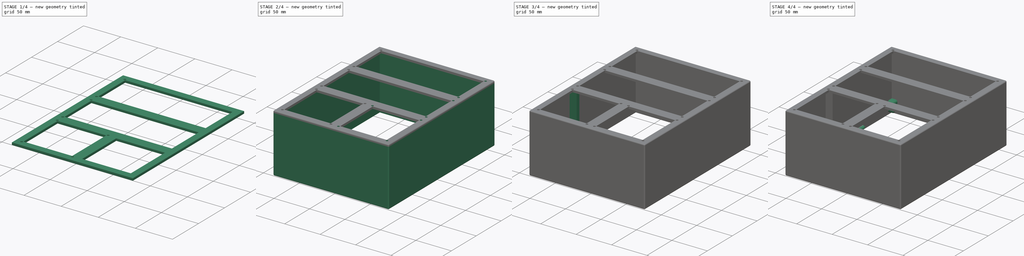
[diagram: build sequence overview — one tinted view per stage of 4, left to right]
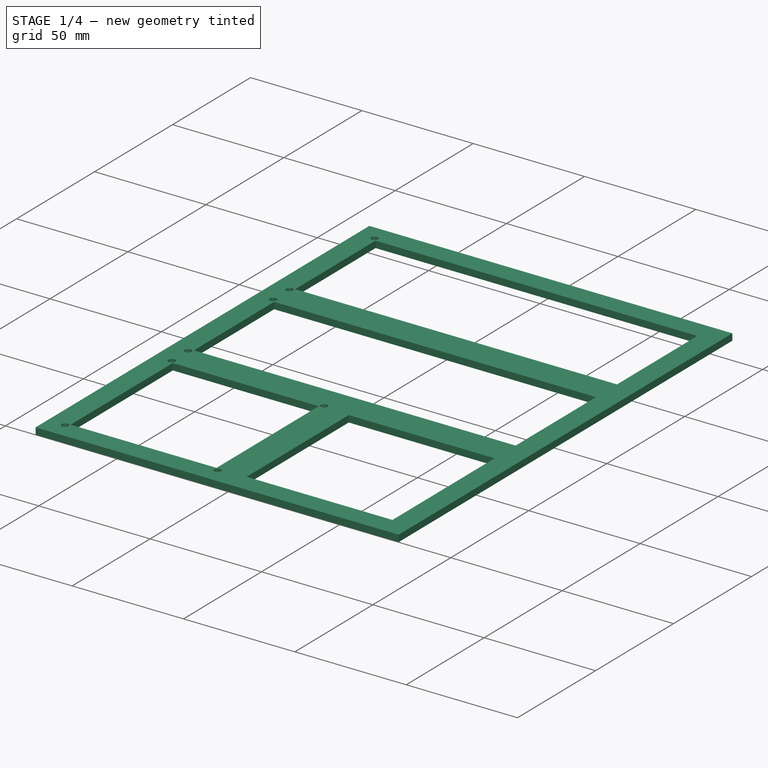
[diagram: stage 1 of 4 — iso view after this stage's code; geometry added in this stage tinted green]
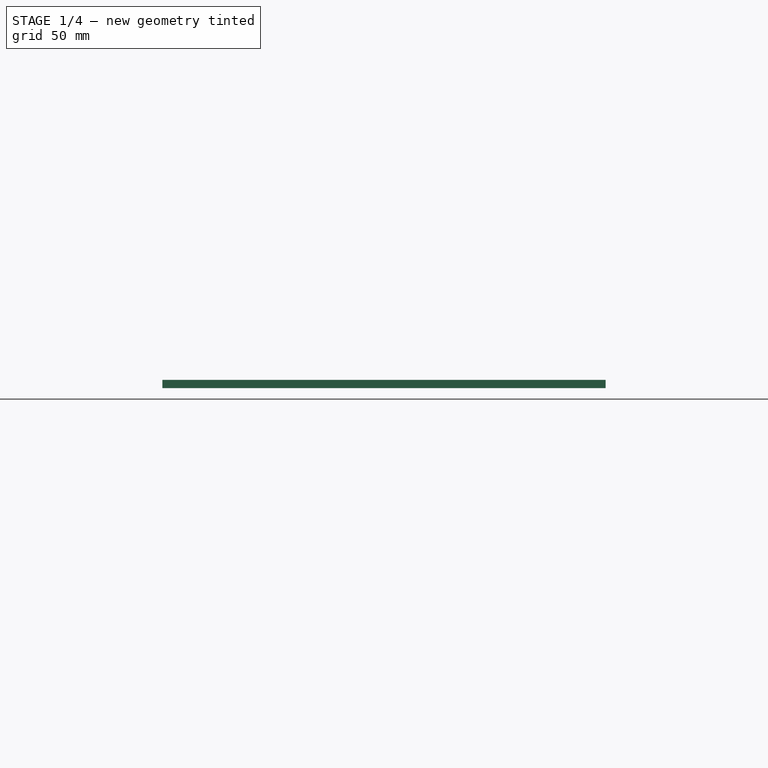
[diagram: stage 1 of 4 — front view after this stage's code; geometry added in this stage tinted green]
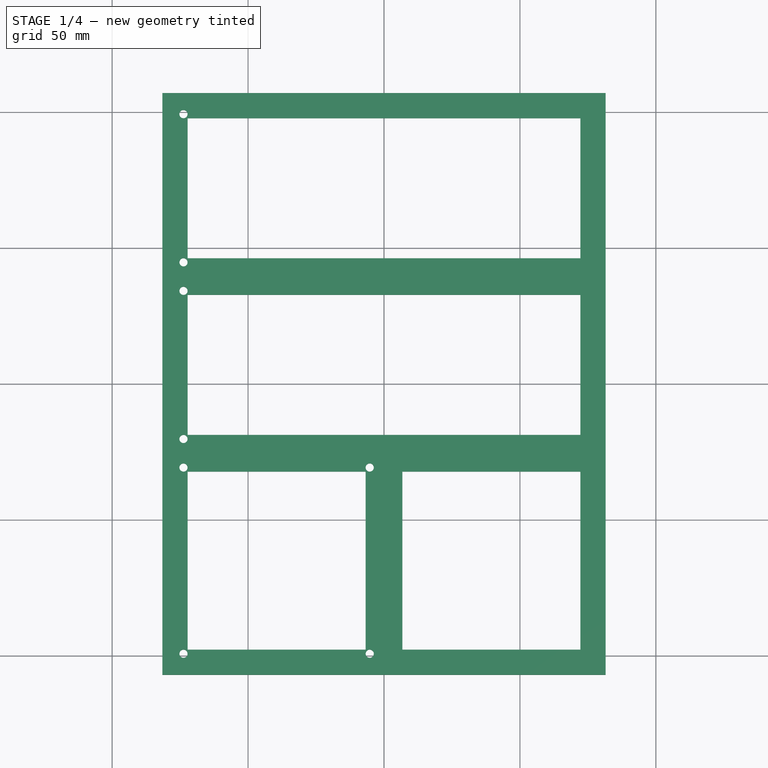
[diagram: stage 1 of 4 — top view after this stage's code; geometry added in this stage tinted green]
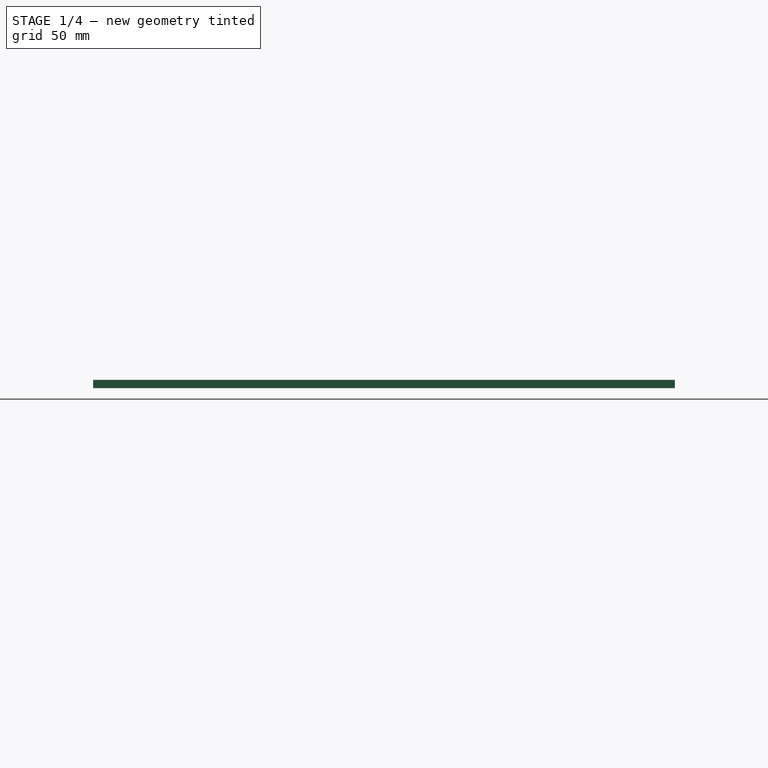
[diagram: stage 1 of 4 — right view after this stage's code; geometry added in this stage tinted green]
FCSTD DOCUMENT  (FreeCAD 0.20R29603 (Git))
Label: frame-2x2-v2
License: All rights reserved
LicenseURL: http://en.wikipedia.org/wiki/All_rights_reserved
objects: Sketcher::SketchObject×8, PartDesign::Pad×5, PartDesign::Pocket×3, PartDesign::Mirrored×3, PartDesign::MultiTransform×2, PartDesign::Fillet×2, PartDesign::Body×1
note: 34 computed .brp shape members not serialized (recipe doc carries the construction recipe); baked Part::Feature solids carry a one-line shape summary decoded from their .brp

FEATURE [Sketcher::SketchObject] Sketch
  FullyConstrained = true
  MapMode = 5
  Support = -> [XY_Plane]
  sketch-geometry (4):
    g0: LineSegment StartX=-81.5 StartY=107 StartZ=0 EndX=81.5 EndY=107 EndZ=0
    g1: LineSegment StartX=81.5 StartY=107 StartZ=0 EndX=81.5 EndY=-107 EndZ=0
    g2: LineSegment StartX=81.5 StartY=-107 StartZ=0 EndX=-81.5 EndY=-107 EndZ=0
    g3: LineSegment StartX=-81.5 StartY=-107 StartZ=0 EndX=-81.5 EndY=107 EndZ=0
  constraints (11):
    c: Coincident(g0,g1)
    c: Coincident(g1,g2)
    c: Coincident(g2,g3)
    c: Coincident(g3,g0)
    c: Horizontal(g0)
    c: Horizontal(g2)
    c: Vertical(g1)
    c: Vertical(g3)
    c: DistanceX(g0,g0) = 163
    c: DistanceY(g2,g0) = 214
    c: Symmetric(g0,g1,g-1)
FEATURE [PartDesign::Pad] Pad
  Direction = (0,0,1)
  Length = 3
  Length2 = 10
  Profile = -> Sketch
  ReferenceAxis = -> Sketch [N_Axis]
  Type = 0
FEATURE [Sketcher::SketchObject] Sketch001
  ExternalGeometry = -> [Pad]
  FullyConstrained = true
  MapMode = 5
  Placement = pos=(0,0,3) rot=(0,0,1;0rad)
  Support = -> [Pad]
  sketch-geometry (18):
    g0: LineSegment StartX=-72.25 StartY=97.75 StartZ=0 EndX=72.25 EndY=97.75 EndZ=0
    g1: LineSegment StartX=72.25 StartY=97.75 StartZ=0 EndX=72.25 EndY=46.25 EndZ=0
    g2: LineSegment StartX=72.25 StartY=46.25 StartZ=0 EndX=-72.25 EndY=46.25 EndZ=0
    g3: LineSegment StartX=-72.25 StartY=46.25 StartZ=0 EndX=-72.25 EndY=97.75 EndZ=0
    g4: GeomPoint X=-72.25 Y=107 Z=0
    g5: GeomPoint X=-81.5 Y=97.75 Z=0
    g6: LineSegment StartX=72.25 StartY=-18.75 StartZ=0 EndX=-72.25 EndY=-18.75 EndZ=0
    g7: LineSegment StartX=-72.25 StartY=-18.75 StartZ=0 EndX=-72.25 EndY=32.75 EndZ=0
    g8: LineSegment StartX=-72.25 StartY=32.75 StartZ=0 EndX=72.25 EndY=32.75 EndZ=0
    g9: LineSegment StartX=72.25 StartY=32.75 StartZ=0 EndX=72.25 EndY=-18.75 EndZ=0
    g10: LineSegment StartX=-72.25 StartY=-32.25 StartZ=0 EndX=-6.75 EndY=-32.25 EndZ=0
    g11: LineSegment StartX=-6.75 StartY=-32.25 StartZ=0 EndX=-6.75 EndY=-97.75 EndZ=0
    g12: LineSegment StartX=-6.75 StartY=-97.75 StartZ=0 EndX=-72.25 EndY=-97.75 EndZ=0
    g13: LineSegment StartX=-72.25 StartY=-97.75 StartZ=0 EndX=-72.25 EndY=-32.25 EndZ=0
    g14: LineSegment StartX=6.75 StartY=-32.25 StartZ=0 EndX=72.25 EndY=-32.25 EndZ=0
    g15: LineSegment StartX=72.25 StartY=-32.25 StartZ=0 EndX=72.25 EndY=-97.75 EndZ=0
    g16: LineSegment StartX=72.25 StartY=-97.75 StartZ=0 EndX=6.75 EndY=-97.75 EndZ=0
    g17: LineSegment StartX=6.75 StartY=-97.75 StartZ=0 EndX=6.75 EndY=-32.25 EndZ=0
  constraints (52):
    c: Coincident(g0,g1)
    c: Coincident(g1,g2)
    c: Coincident(g2,g3)
    c: Coincident(g3,g0)
    c: Horizontal(g0)
    c: Horizontal(g2)
    c: Vertical(g1)
    c: Vertical(g3)
    c: DistanceY(g2,g0) = 51.5
    c: DistanceX(g0,g0) = 144.5
    c: PointOnObject(g4,g-4)
    c: PointOnObject(g5,g-3)
    c: DistanceX(g-4,g4) = 9.25
    c: DistanceY(g5,g-4) = 9.25
    c: DistanceX(g0,g4) = 0
    c: DistanceY(g0,g5) = 0
    c: Coincident(g6,g7)
    c: Coincident(g7,g8)
    c: Coincident(g8,g9)
    c: Coincident(g9,g6)
    c: Horizontal(g6)
    c: Horizontal(g8)
    c: Vertical(g7)
    c: Vertical(g9)
    c: DistanceX(g7,g8) = 144.5
    c: DistanceY(g6,g7) = 51.5
    c: DistanceX(g4,g7) = 0
    c: DistanceY(g7,g2) = 13.5
    c: Coincident(g10,g11)
    c: Coincident(g11,g12)
    c: Coincident(g12,g13)
    c: Coincident(g13,g10)
    c: Horizontal(g10)
    c: Horizontal(g12)
    c: Vertical(g11)
    c: Vertical(g13)
    c: DistanceY(g12,g10) = 65.5
    c: DistanceX(g10,g10) = 65.5
    c: DistanceX(g4,g10) = 0
    c: DistanceY(g10,g6) = 13.5
    c: Coincident(g14,g15)
    c: Coincident(g15,g16)
    c: Coincident(g16,g17)
    c: Coincident(g17,g14)
    c: Horizontal(g14)
    c: Horizontal(g16)
    c: Vertical(g15)
    c: Vertical(g17)
    c: DistanceY(g16,g14) = 65.5
    c: DistanceX(g14,g14) = 65.5
    c: DistanceX(g14,g6) = 0
    c: DistanceY(g10,g14) = 0
FEATURE [PartDesign::Pocket] Pocket
  BaseFeature = -> Pad
  Direction = (0,0,-1)
  Length = 5
  Length2 = 5
  Profile = -> Sketch001
  ReferenceAxis = -> Sketch001 [N_Axis]
  Type = 1
FEATURE [Sketcher::SketchObject] Sketch002
  ExternalGeometry = -> [Pocket]
  FullyConstrained = true
  MapMode = 5
  Placement = pos=(0,0,3) rot=(0,0,1;0rad)
  Support = -> [Pocket]
  expr: Constraints[10] = .Constraints.HorizontalDistance
  expr: Constraints[11] = .Constraints.VerticalDistance
  expr: Constraints[12] = .Constraints.HorizontalDistance
  expr: Constraints[13] = .Constraints.VerticalDistance
  expr: Constraints[14] = .Constraints.HorizontalDistance
  expr: Constraints[15] = .Constraints.VerticalDistance
  expr: Constraints[16] = .Constraints.HorizontalDistance
  expr: Constraints[17] = .Constraints.VerticalDistance
  expr: Constraints[18] = .Constraints.HorizontalDistance
  expr: Constraints[19] = .Constraints.VerticalDistance
  expr: Constraints[20] = .Constraints.HorizontalDistance
  expr: Constraints[21] = .Constraints.VerticalDistance
  expr: Constraints[22] = .Constraints.HorizontalDistance
  expr: Constraints[23] = .Constraints.VerticalDistance
  sketch-geometry (8):
    g0: Circle CenterX=-73.75 CenterY=99.25 CenterZ=0 NormalX=0 NormalY=0 NormalZ=1 AngleXU=0 Radius=1.5
    g1: Circle CenterX=-73.75 CenterY=44.75 CenterZ=0 NormalX=0 NormalY=0 NormalZ=1 AngleXU=0 Radius=1.5
    g2: Circle CenterX=-73.75 CenterY=34.25 CenterZ=0 NormalX=0 NormalY=0 NormalZ=1 AngleXU=0 Radius=1.5
    g3: Circle CenterX=-73.75 CenterY=-20.25 CenterZ=0 NormalX=0 NormalY=0 NormalZ=1 AngleXU=0 Radius=1.5
    g4: Circle CenterX=-73.75 CenterY=-30.75 CenterZ=0 NormalX=0 NormalY=0 NormalZ=1 AngleXU=0 Radius=1.5
    g5: Circle CenterX=-73.75 CenterY=-99.25 CenterZ=0 NormalX=0 NormalY=0 NormalZ=1 AngleXU=0 Radius=1.5
    g6: Circle CenterX=-5.25 CenterY=-30.75 CenterZ=0 NormalX=0 NormalY=0 NormalZ=1 AngleXU=0 Radius=1.5
    g7: Circle CenterX=-5.25 CenterY=-99.25 CenterZ=0 NormalX=0 NormalY=0 NormalZ=1 AngleXU=0 Radius=1.5
  constraints (24):
    c: Diameter(g0) = 3
    c: Equal(g0,g1)
    c: Equal(g1,g2)
    c: Equal(g2,g3)
    c: Equal(g3,g4)
    c: Equal(g4,g5)
    c: Equal(g5,g7)
    c: Equal(g7,g6)
    c: DistanceX(g0,g-4) = 1.5  'HorizontalDistance'
    c: DistanceY(g-4,g0) = 1.5  'VerticalDistance'
    c: DistanceX(g1,g-3) = 1.5
    c: DistanceY(g1,g-3) = 1.5
    c: DistanceX(g2,g-6) = 1.5
    c: DistanceY(g-6,g2) = 1.5
    c: DistanceX(g3,g-6) = 1.5
    c: DistanceY(g3,g-6) = 1.5
    c: DistanceX(g4,g-8) = 1.5
    c: DistanceY(g-8,g4) = 1.5
    c: DistanceX(g5,g-9) = 1.5
    c: DistanceY(g5,g-9) = 1.5
    c: DistanceX(g-9,g7) = 1.5
    c: DistanceY(g7,g-9) = 1.5
    c: DistanceX(g-7,g6) = 1.5
    c: DistanceY(g-7,g6) = 1.5
FEATURE [PartDesign::Pocket] Pocket001
  BaseFeature = -> Pocket
  Direction = (0,0,-1)
  Length = 5
  Length2 = 5
  Profile = -> Sketch002
  ReferenceAxis = -> Sketch002 [N_Axis]
  Type = 1
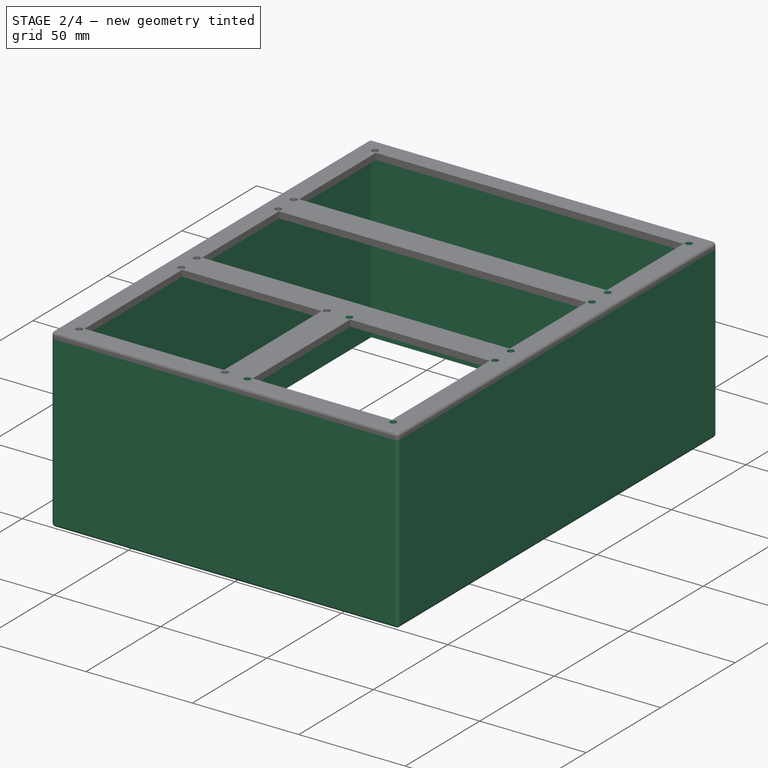
[diagram: stage 2 of 4 — iso view after this stage's code; geometry added in this stage tinted green]
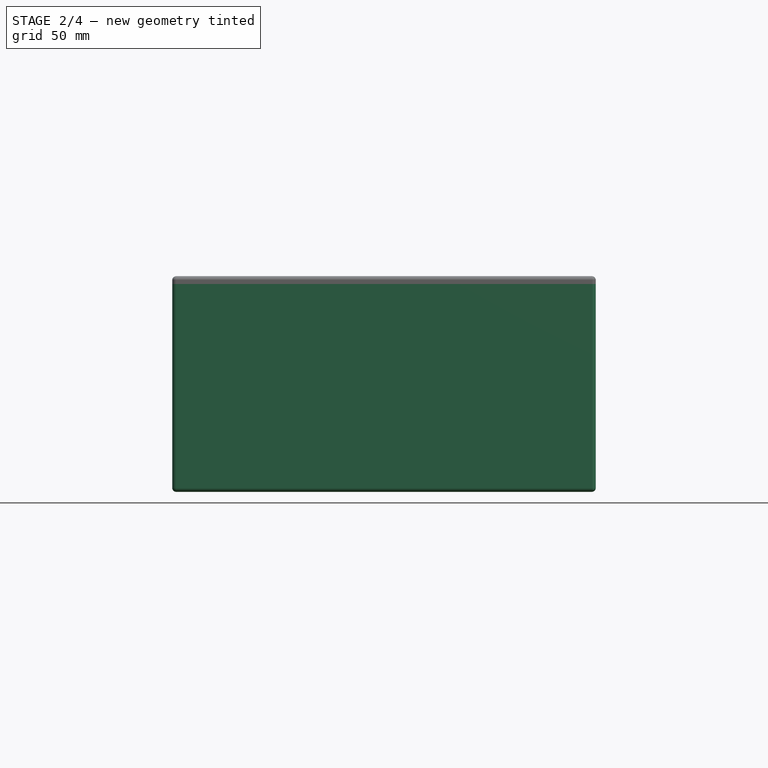
[diagram: stage 2 of 4 — front view after this stage's code; geometry added in this stage tinted green]
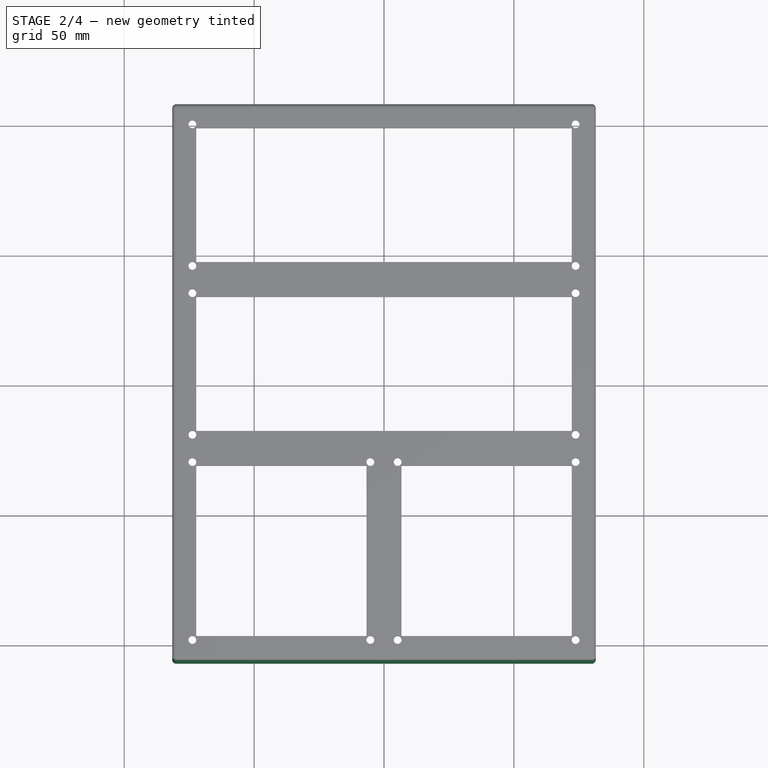
[diagram: stage 2 of 4 — top view after this stage's code; geometry added in this stage tinted green]
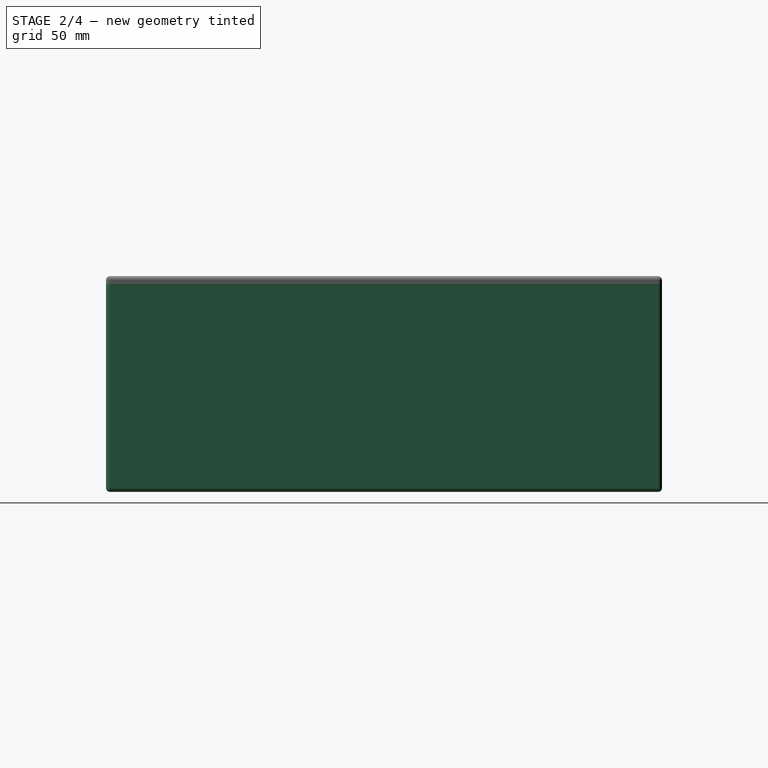
[diagram: stage 2 of 4 — right view after this stage's code; geometry added in this stage tinted green]
FEATURE [PartDesign::Mirrored] Mirrored
  MirrorPlane = -> Sketch002 [V_Axis]
FEATURE [PartDesign::MultiTransform] MultiTransform
  BaseFeature = -> Pocket001
  Originals = -> [Pocket001]
  Transformations = -> [Mirrored]
FEATURE [Sketcher::SketchObject] Sketch003  label="SketchInnerWall"
  ExternalGeometry = -> [MultiTransform]
  FullyConstrained = true
  MapMode = 5
  Placement = pos=(0,0,0) rot=(1,0,0;3.14159rad)
  Support = -> [MultiTransform]
  sketch-geometry (8):
    g0: LineSegment StartX=-81.5 StartY=107 StartZ=0 EndX=81.5 EndY=107 EndZ=0
    g1: LineSegment StartX=81.5 StartY=107 StartZ=0 EndX=81.5 EndY=-107 EndZ=0
    g2: LineSegment StartX=81.5 StartY=-107 StartZ=0 EndX=-81.5 EndY=-107 EndZ=0
    g3: LineSegment StartX=-81.5 StartY=-107 StartZ=0 EndX=-81.5 EndY=107 EndZ=0
    g4: LineSegment StartX=-79.5 StartY=105 StartZ=0 EndX=79.5 EndY=105 EndZ=0
    g5: LineSegment StartX=79.5 StartY=105 StartZ=0 EndX=79.5 EndY=-105 EndZ=0
    g6: LineSegment StartX=79.5 StartY=-105 StartZ=0 EndX=-79.5 EndY=-105 EndZ=0
    g7: LineSegment StartX=-79.5 StartY=-105 StartZ=0 EndX=-79.5 EndY=105 EndZ=0
  constraints (24):
    c: Coincident(g0,g1)
    c: Coincident(g1,g2)
    c: Coincident(g2,g3)
    c: Coincident(g3,g0)
    c: Horizontal(g0)
    c: Horizontal(g2)
    c: Vertical(g1)
    c: Vertical(g3)
    c: DistanceX(g0,g-5) = 0
    c: DistanceX(g-4,g0) = 0
    c: DistanceY(g0,g-4) = 0
    c: DistanceY(g-6,g2) = 0
    c: Coincident(g4,g5)
    c: Coincident(g5,g6)
    c: Coincident(g6,g7)
    c: Coincident(g7,g4)
    c: Horizontal(g4)
    c: Horizontal(g6)
    c: Vertical(g5)
    c: Vertical(g7)
    c: DistanceX(g0,g4) = 2
    c: DistanceY(g4,g0) = 2
    c: DistanceX(g4,g0) = 2
    c: DistanceY(g2,g6) = 2
FEATURE [PartDesign::Pad] Pad001  label="InnerWallPad"
  BaseFeature = -> MultiTransform
  Direction = (0,0,-1)
  Length = 80
  Length2 = 10
  Profile = -> Sketch003
  ReferenceAxis = -> Sketch003 [N_Axis]
  Type = 0
FEATURE [PartDesign::Fillet] Fillet
  Base = -> Pad001 [Face3,Face8,Face2,Face7,Face1,Face4,Face42,Face6]
  BaseFeature = -> Pad001
  Radius = 1.5
  SupportTransform = false
  UseAllEdges = false
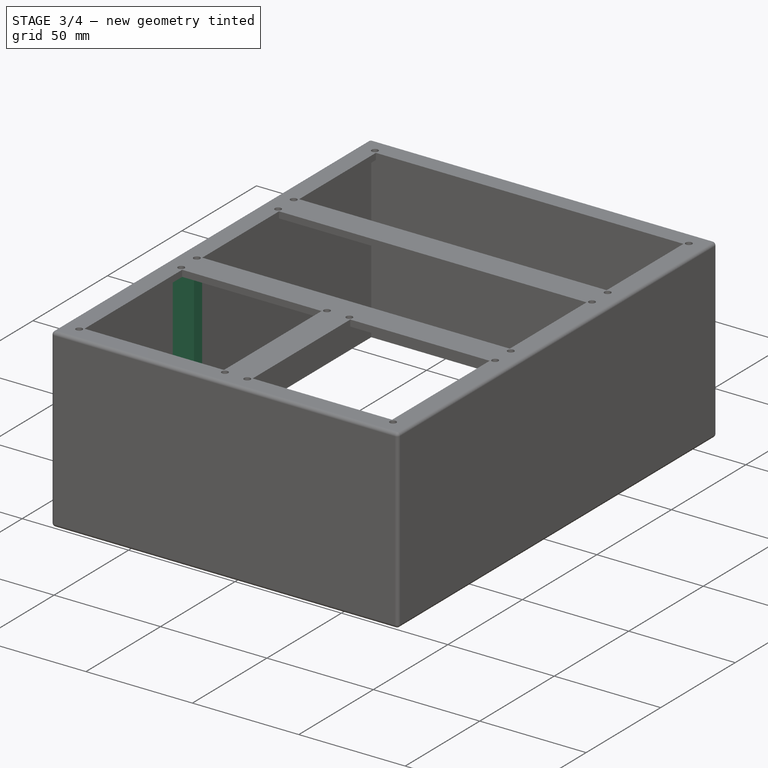
[diagram: stage 3 of 4 — iso view after this stage's code; geometry added in this stage tinted green]
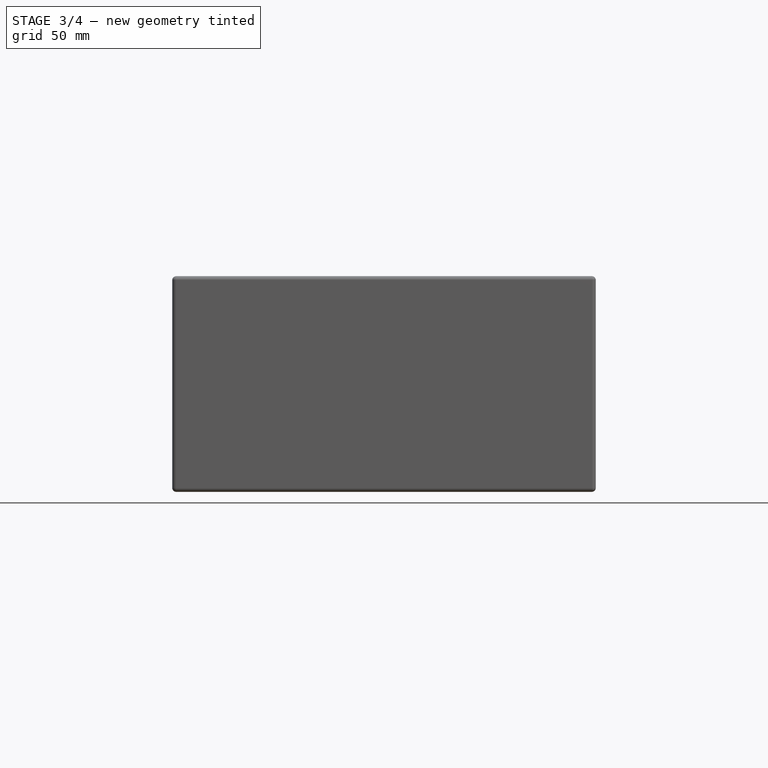
[diagram: stage 3 of 4 — front view after this stage's code; geometry added in this stage tinted green]
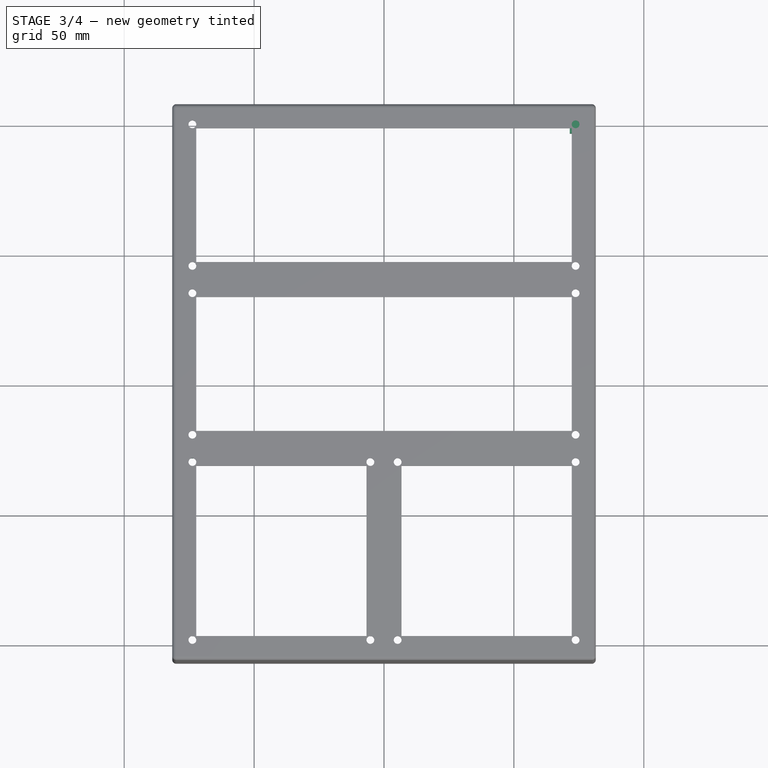
[diagram: stage 3 of 4 — top view after this stage's code; geometry added in this stage tinted green]
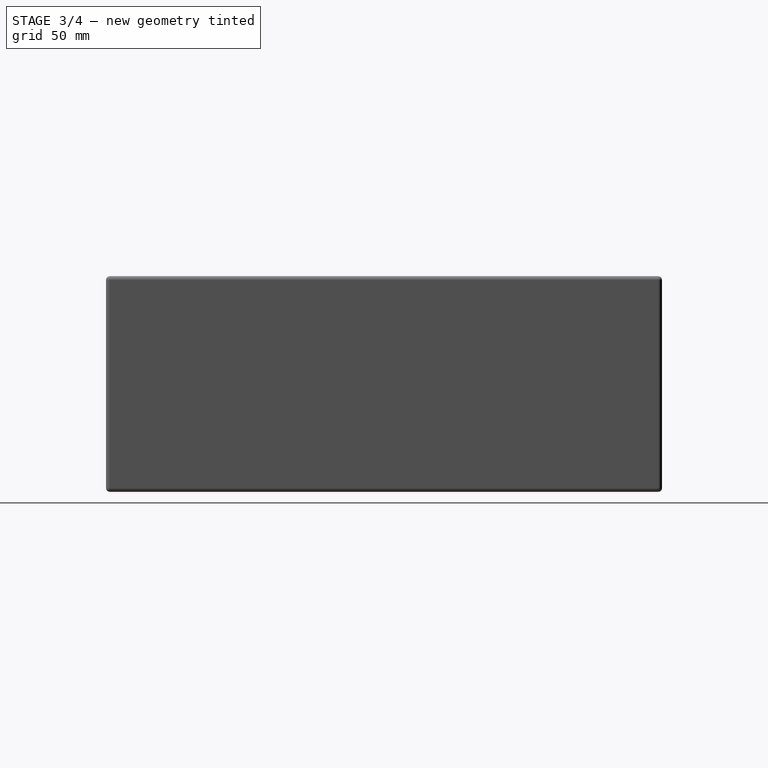
[diagram: stage 3 of 4 — right view after this stage's code; geometry added in this stage tinted green]
FEATURE [Sketcher::SketchObject] Sketch004  label="SketchBatterySupport"
  ExternalGeometry = -> [Fillet]
  FullyConstrained = true
  MapMode = 5
  Placement = pos=(0,0,0) rot=(1,0,0;3.14159rad)
  Support = -> [Fillet]
  sketch-geometry (6):
    g0: LineSegment StartX=-69.5 StartY=28.25 StartZ=0 EndX=-79.5 EndY=28.25 EndZ=0
    g1: LineSegment StartX=-79.5 StartY=28.25 StartZ=0 EndX=-79.5 EndY=22.75 EndZ=0
    g2: LineSegment StartX=-79.5 StartY=22.75 StartZ=0 EndX=-69.5 EndY=22.75 EndZ=0
    g3: LineSegment StartX=-69.5 StartY=22.75 StartZ=0 EndX=-69.5 EndY=28.25 EndZ=0
    g4: GeomPoint X=-73.75 Y=21.75 Z=0
    g5: GeomPoint X=-73.75 Y=29.25 Z=0
  constraints (16):
    c: Coincident(g0,g1)
    c: Coincident(g1,g2)
    c: Horizontal(g0)
    c: Horizontal(g2)
    c: PointOnObject(g1,g-3)
    c: Vertical(g0,g1)
    c: Vertical(g0,g2)
    c: Coincident(g3,g2)
    c: Coincident(g3,g0)
    c: PointOnObject(g4,g-4)
    c: PointOnObject(g5,g-5)
    c: Vertical(g5,g-5)
    c: Vertical(g-4,g4)
    c: DistanceY(g4,g1) = 1
    c: DistanceY(g0,g5) = 1
    c: DistanceX(g1,g2) = 10
FEATURE [PartDesign::Pad] Pad002  label="BatterySupportPad"
  BaseFeature = -> Fillet
  Direction = (0,0,-1)
  Length = 64
  Length2 = 10
  Profile = -> Sketch004
  ReferenceAxis = -> Sketch004 [N_Axis]
  Type = 0
FEATURE [Sketcher::SketchObject] Sketch006  label="SketchLidSupport"
  ExternalGeometry = -> [Pad002]
  FullyConstrained = true
  MapMode = 5
  Placement = pos=(79.5,0,0) rot=(0.57735,-0.57735,-0.57735;2.0944rad)
  Support = -> [Pad002]
  sketch-geometry (4):
    g0: LineSegment StartX=-105 StartY=-77 StartZ=0 EndX=-97 EndY=-77 EndZ=0
    g1: LineSegment StartX=-97 StartY=-77 StartZ=0 EndX=-97 EndY=-62 EndZ=0
    g2: LineSegment StartX=-97 StartY=-62 StartZ=0 EndX=-105 EndY=-62 EndZ=0
    g3: LineSegment StartX=-105 StartY=-62 StartZ=0 EndX=-105 EndY=-77 EndZ=0
  constraints (12):
    c: Coincident(g0,g1)
    c: Coincident(g1,g2)
    c: Coincident(g2,g3)
    c: Coincident(g3,g0)
    c: Horizontal(g0)
    c: Horizontal(g2)
    c: Vertical(g3)
    c: DistanceX(g0,g0) = 8
    c: DistanceY(g0,g2) = 15
    c: Vertical(g0,g1)
    c: Vertical(g0,g-3)
    c: DistanceY(g-3,g0) = 3
FEATURE [PartDesign::Pad] Pad003  label="LidSupportPad"
  BaseFeature = -> Pad002
  Direction = (-1,0,0)
  Length = 8
  Length2 = 10
  Profile = -> Sketch006
  ReferenceAxis = -> Sketch006 [N_Axis]
  Type = 0
FEATURE [Sketcher::SketchObject] Sketch007  label="SketchLidSupportScrewHole"
  ExternalGeometry = -> [Pad003]
  FullyConstrained = true
  MapMode = 5
  Placement = pos=(0,0,-77) rot=(1,0,0;3.14159rad)
  Support = -> [Pad003]
  sketch-geometry (1):
    g0: Circle CenterX=76.5 CenterY=-102 CenterZ=0 NormalX=0 NormalY=0 NormalZ=1 AngleXU=0 Radius=2.5
  constraints (3):
    c: Diameter(g0) = 5
    c: DistanceY(g-4,g0) = 3
    c: DistanceX(g0,g-4) = 3
FEATURE [PartDesign::Pocket] Pocket002  label="LidSupportScrewHole"
  BaseFeature = -> Pad003
  Direction = (0,0,1)
  Length = 7
  Length2 = 5
  Profile = -> Sketch007
  ReferenceAxis = -> Sketch007 [N_Axis]
  Type = 0
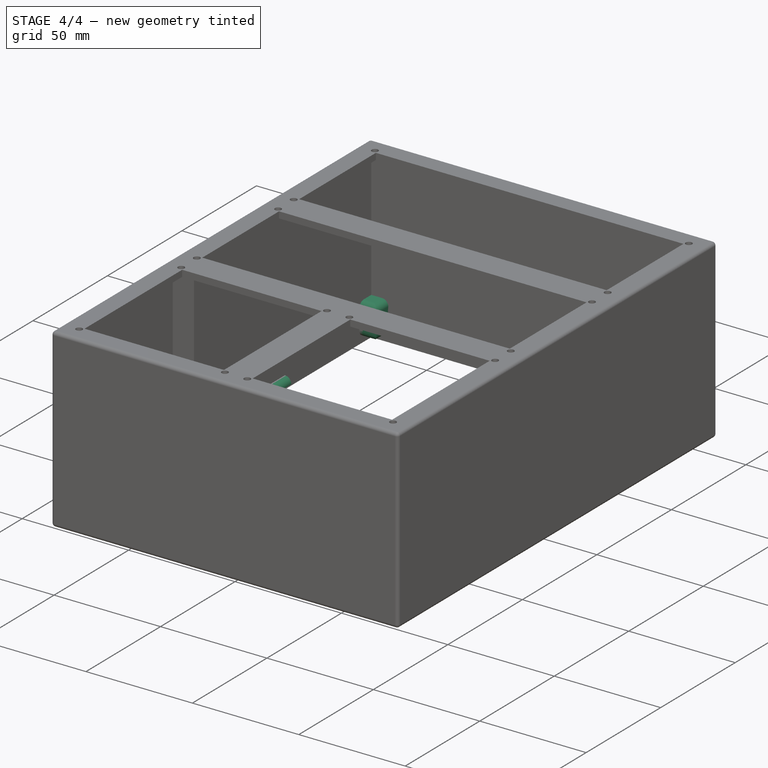
[diagram: stage 4 of 4 — iso view after this stage's code; geometry added in this stage tinted green]
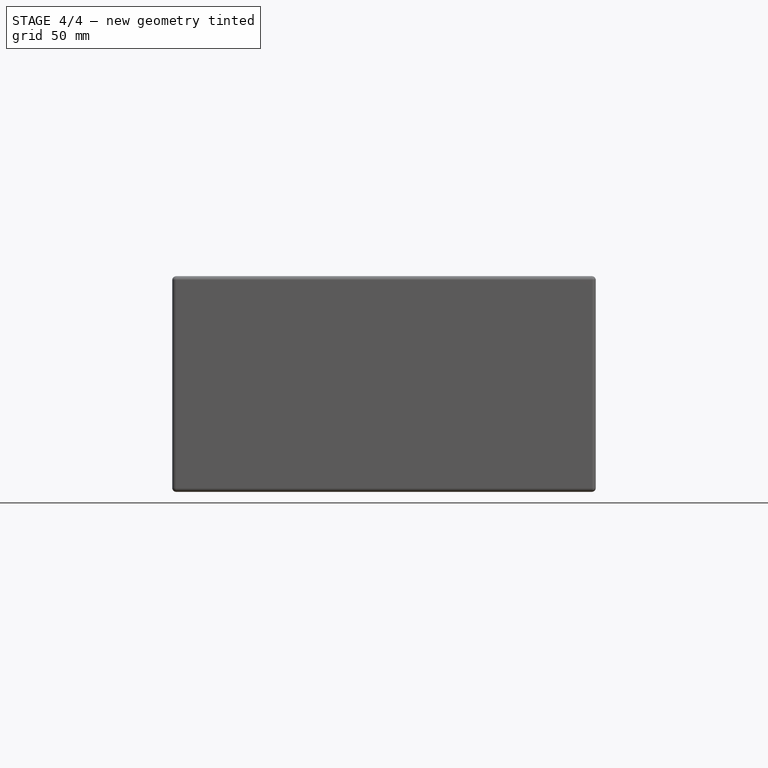
[diagram: stage 4 of 4 — front view after this stage's code; geometry added in this stage tinted green]
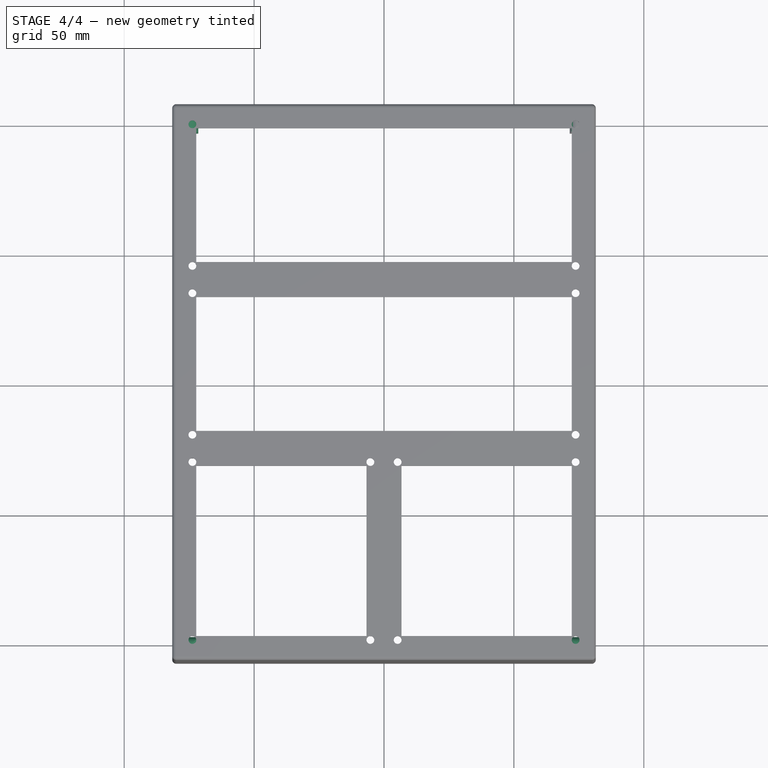
[diagram: stage 4 of 4 — top view after this stage's code; geometry added in this stage tinted green]
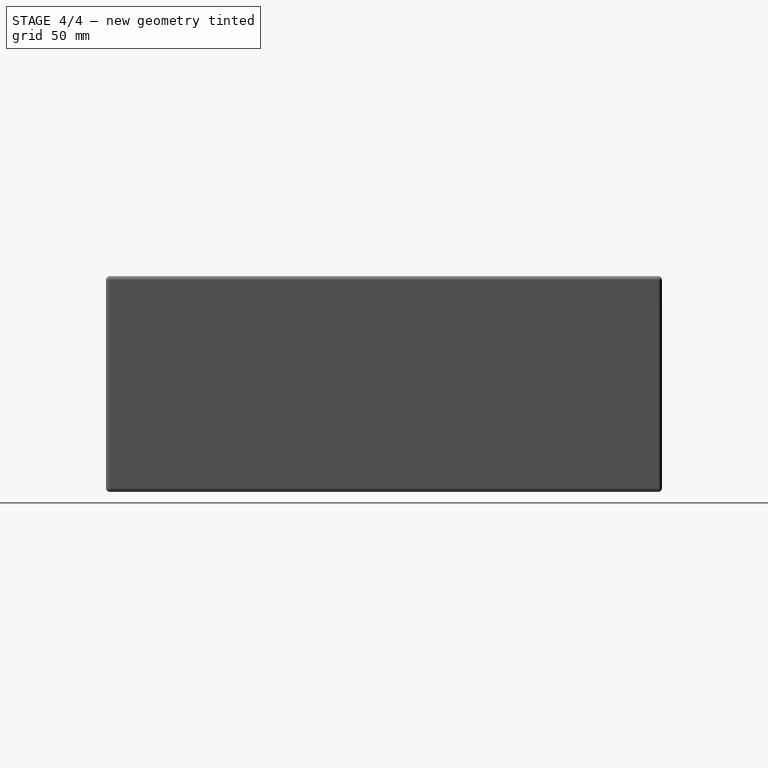
[diagram: stage 4 of 4 — right view after this stage's code; geometry added in this stage tinted green]
FEATURE [Sketcher::SketchObject] Sketch008  label="SketchLidExtraSupport"
  ExternalGeometry = -> [Pocket002]
  FullyConstrained = true
  MapMode = 5
  Placement = pos=(79.5,0,0) rot=(0.57735,-0.57735,-0.57735;2.0944rad)
  Support = -> [Pocket002]
  sketch-geometry (4):
    g0: LineSegment StartX=-47 StartY=-74 StartZ=0 EndX=-32 EndY=-74 EndZ=0
    g1: LineSegment StartX=-32 StartY=-74 StartZ=0 EndX=-32 EndY=-77 EndZ=0
    g2: LineSegment StartX=-32 StartY=-77 StartZ=0 EndX=-47 EndY=-77 EndZ=0
    g3: LineSegment StartX=-47 StartY=-77 StartZ=0 EndX=-47 EndY=-74 EndZ=0
  constraints (12):
    c: Coincident(g0,g1)
    c: Coincident(g1,g2)
    c: Coincident(g2,g3)
    c: Coincident(g3,g0)
    c: Horizontal(g0)
    c: Horizontal(g2)
    c: Vertical(g1)
    c: Vertical(g3)
    c: DistanceY(g2,g0) = 3
    c: DistanceX(g2,g1) = 15
    c: Horizontal(g2,g-3)
    c: DistanceX(g-3,g2) = 50
FEATURE [PartDesign::Pad] Pad004  label="LidExtraSupport"
  BaseFeature = -> Pocket002
  Direction = (-1,0,0)
  Length = 3
  Length2 = 10
  Profile = -> Sketch008
  ReferenceAxis = -> Sketch008 [N_Axis]
  Type = 0
FEATURE [PartDesign::Fillet] Fillet002  label="LidExtraSupportFillet"
  Base = -> Pad004 [Edge207,Edge203,Edge201,Edge200,Edge199]
  BaseFeature = -> Pad004
  Radius = 2.9
  SupportTransform = false
  UseAllEdges = false
FEATURE [PartDesign::Mirrored] Mirrored001
  MirrorPlane = -> Sketch006 [V_Axis]
FEATURE [PartDesign::Mirrored] Mirrored002
  MirrorPlane = -> YZ_Plane
FEATURE [PartDesign::MultiTransform] MultiTransform001
  BaseFeature = -> Fillet002
  Originals = -> [Pad003,Pocket002,Pad004,Fillet002]
  Transformations = -> [Mirrored001,Mirrored002]
FEATURE [PartDesign::Body] Body
  Group = -> [Sketch,Pad,Sketch001,Pocket,Sketch002,Pocket001,MultiTransform,Mirrored,Sketch003,Pad001,Fillet,Sketch004,Pad002,Sketch006,Pad003,Sketch007,Pocket002,Sketch008,Pad004,Fillet002,MultiTransform001,Mirrored001,Mirrored002]
  Origin = -> Origin
  Tip = -> MultiTransform001
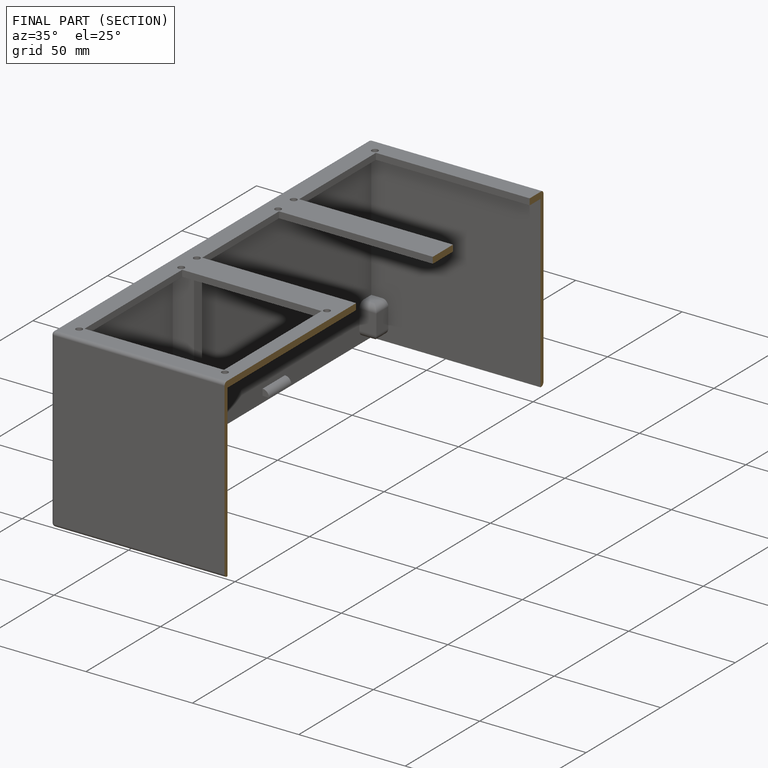
[diagram: finished part — half-section view (interior)]
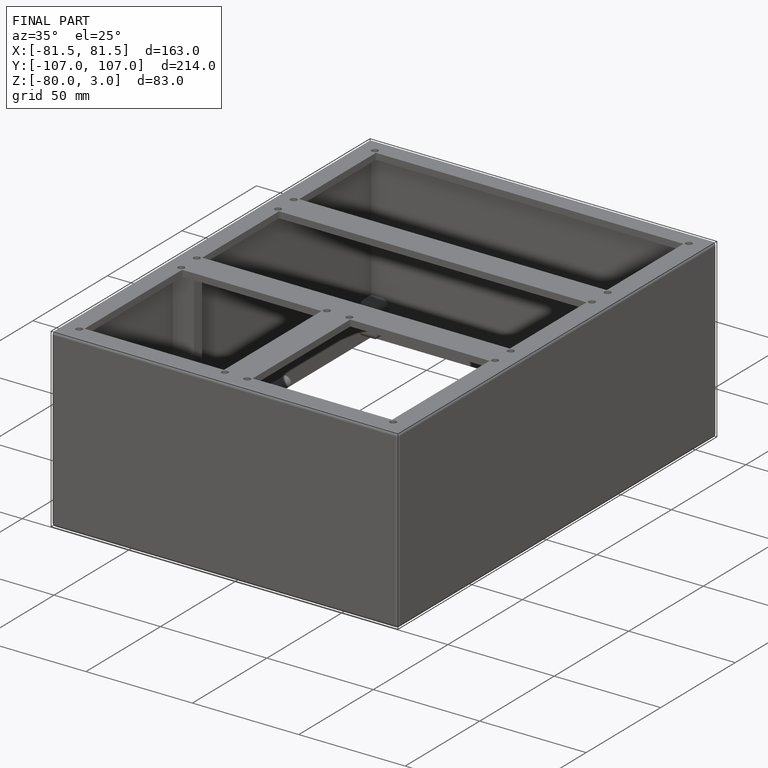
[diagram: finished part — iso view with bounding-box wireframe]
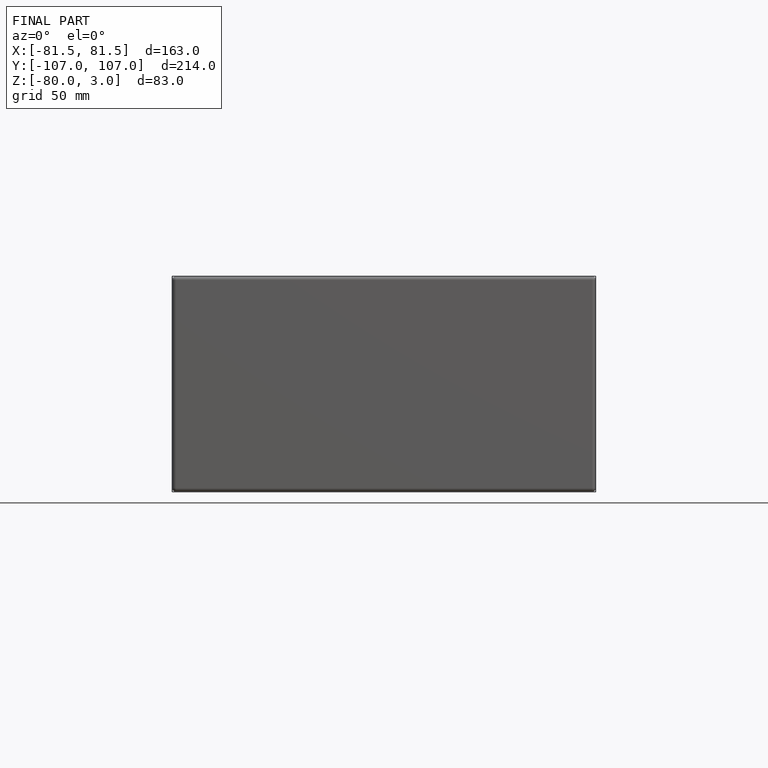
[diagram: finished part — front view with bounding-box wireframe]
